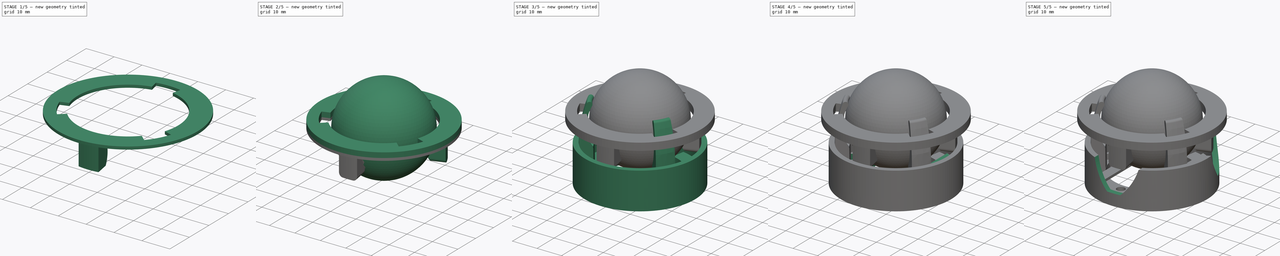
[diagram: build sequence overview — one tinted view per stage of 5, left to right]
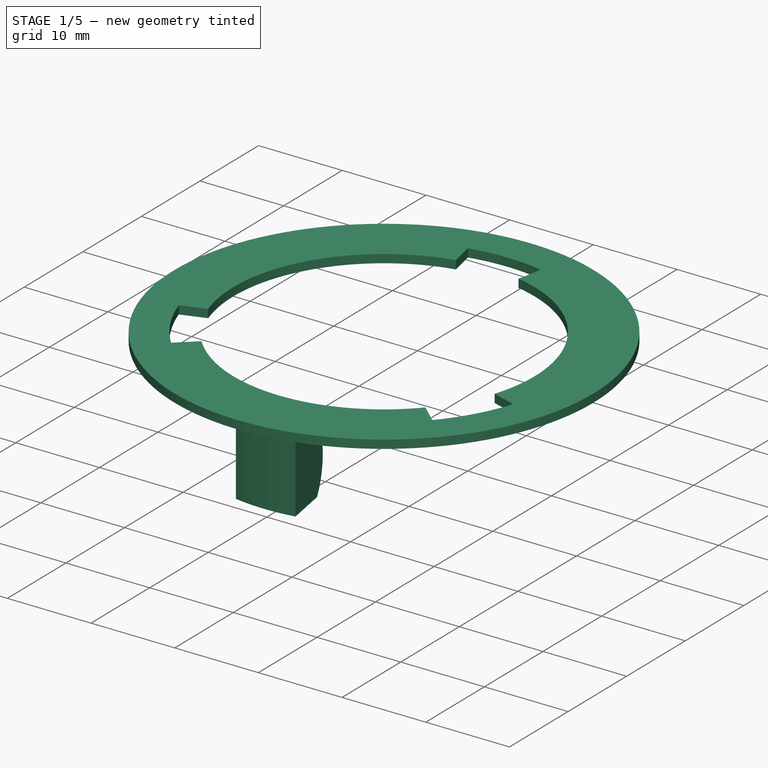
[diagram: stage 1 of 5 — iso view after this stage's code; geometry added in this stage tinted green]
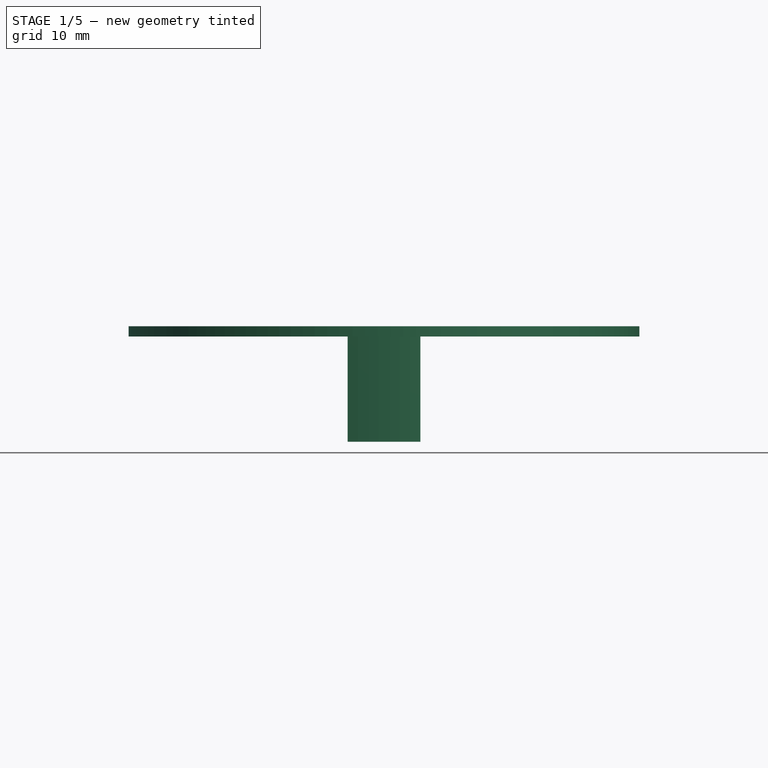
[diagram: stage 1 of 5 — front view after this stage's code; geometry added in this stage tinted green]
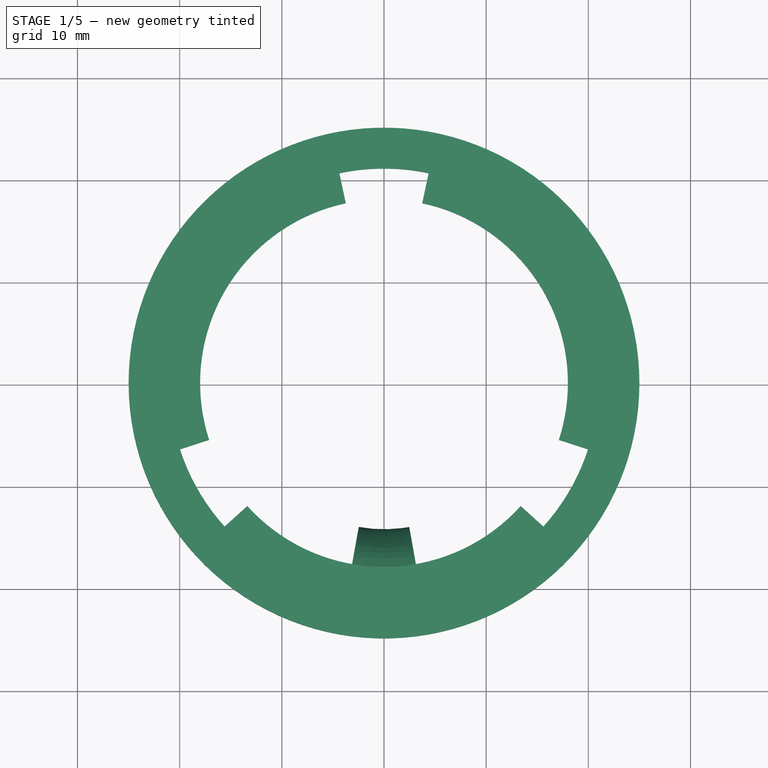
[diagram: stage 1 of 5 — top view after this stage's code; geometry added in this stage tinted green]
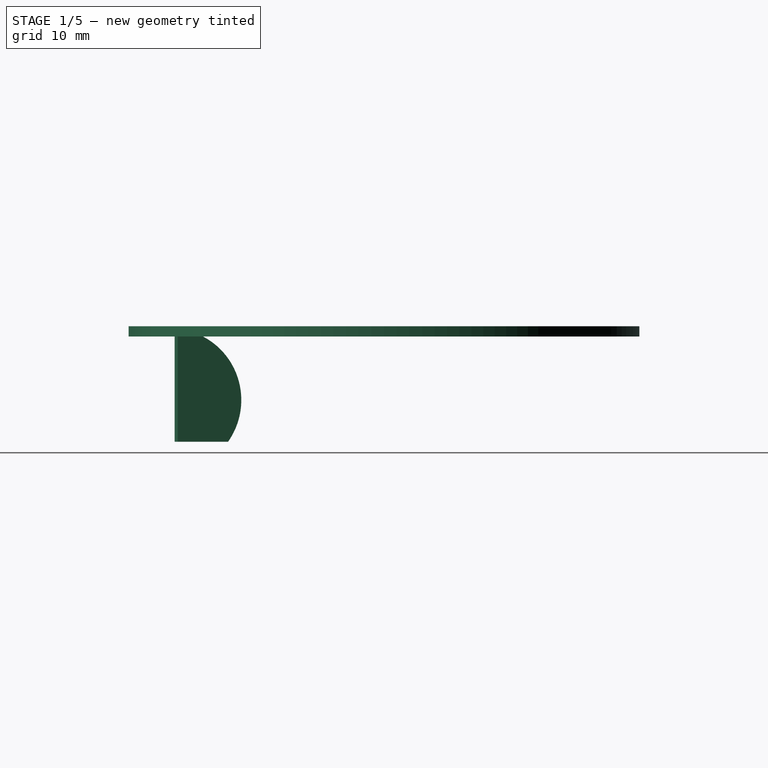
[diagram: stage 1 of 5 — right view after this stage's code; geometry added in this stage tinted green]
FCSTD DOCUMENT  (FreeCAD 0.21R33675 (Git))
Label: trackball_mount
License: All rights reserved
LicenseURL: https://en.wikipedia.org/wiki/All_rights_reserved
objects: Sketcher::SketchObject×16, PartDesign::Pad×7, PartDesign::PolarPattern×6, PartDesign::Pocket×5, PartDesign::Revolution×3, PartDesign::Body×3, PartDesign::Groove×2, App::Part×2, PartDesign::Fillet×1, PartDesign::Chamfer×1
note: 63 computed .brp shape members not serialized (recipe doc carries the construction recipe); baked Part::Feature solids carry a one-line shape summary decoded from their .brp

FEATURE [Sketcher::SketchObject] Sketch012
  FullyConstrained = true
  MapMode = 5
  Support = -> [XY_Plane005]
  sketch-geometry (2):
    g0: Circle CenterX=0 CenterY=0 CenterZ=0 NormalX=0 NormalY=0 NormalZ=1 AngleXU=0 Radius=25
    g1: Circle CenterX=0 CenterY=0 CenterZ=0 NormalX=0 NormalY=0 NormalZ=1 AngleXU=0 Radius=18
  constraints (4):
    c: Coincident(g0,g-1)
    c: Diameter(g0) = 50
    c: Coincident(g1,g0)
    c: Diameter(g1) = 36
FEATURE [PartDesign::Pad] Pad005
  Direction = (0,0,1)
  Length = 1
  Length2 = 10
  Profile = -> Sketch012
  ReferenceAxis = -> Sketch012 [N_Axis]
  Type = 0
FEATURE [Sketcher::SketchObject] Sketch013
  ExternalGeometry = -> [Pad005]
  FullyConstrained = true
  MapMode = 5
  Placement = pos=(0,0,1) rot=(0,0,1;0rad)
  Support = -> [Pad005]
  sketch-geometry (4):
    g0: LineSegment StartX=0 StartY=0 StartZ=0 EndX=-4.36615 EndY=20.5411 EndZ=0
    g1: LineSegment StartX=0 StartY=0 StartZ=0 EndX=4.36615 EndY=20.5411 EndZ=0
    g2: Circle CenterX=0 CenterY=0 CenterZ=0 NormalX=0 NormalY=0 NormalZ=1 AngleXU=0 Radius=21
    g3: ArcOfCircle CenterX=5.6e-15 CenterY=0 CenterZ=0 NormalX=0 NormalY=0 NormalZ=1 AngleXU=0 Radius=21 StartAngle=1.36136 EndAngle=1.78024
  constraints (11):
    c: Coincident(g0,g-1)
    c: Coincident(g1,g0)
    c: Angle(g-2,g0) = 0.20944
    c: Angle(g1,g-2) = 0.20944
    c: Coincident(g2,g0)
    c: Diameter(g2) = 42
    c: PointOnObject(g0,g2)
    c: PointOnObject(g1,g2)
    c: Coincident(g3,g0)
    c: Coincident(g3,g1)
    c: Tangent(g3,g2)
FEATURE [PartDesign::Pocket] Pocket003
  BaseFeature = -> Pad005
  Direction = (0,0,-1)
  Length = 5
  Length2 = 5
  Profile = -> Sketch013
  ReferenceAxis = -> Sketch013 [N_Axis]
  Type = 0
FEATURE [PartDesign::PolarPattern] PolarPattern003
  Angle = 360
  Axis = -> Sketch013 [N_Axis]
  BaseFeature = -> Pocket003
  Occurrences = 3
  Originals = -> [Pocket003]
FEATURE [Sketcher::SketchObject] Sketch015
  ExternalGeometry = -> [PolarPattern003]
  FullyConstrained = true
  MapMode = 5
  Placement = pos=(0,0,0) rot=(0.57735,0.57735,0.57735;2.0944rad)
  Support = -> [YZ_Plane005]
  sketch-geometry (7):
    g0: LineSegment StartX=-20.5 StartY=-10.3 StartZ=0 EndX=-15.5 EndY=-10.3 EndZ=0
    g1: LineSegment StartX=-18 StartY=9e-16 StartZ=0 EndX=-20.5 EndY=9e-16 EndZ=0
    g2: LineSegment StartX=-20.5 StartY=-10.3 StartZ=0 EndX=-20.5 EndY=0 EndZ=0
    g3: Circle CenterX=-18.15 CenterY=-10.3 CenterZ=0 NormalX=0 NormalY=0 NormalZ=1 AngleXU=0 Radius=1.5
    g4: LineSegment StartX=-16.65 StartY=-10.3 StartZ=0 EndX=-16.65 EndY=-2.3 EndZ=0
    g5: Circle CenterX=-16.65 CenterY=-2.3 CenterZ=0 NormalX=0 NormalY=0 NormalZ=1 AngleXU=0 Radius=1
    g6: ArcOfCircle CenterX=-21.1652 CenterY=-6.22165 CenterZ=0 NormalX=0 NormalY=0 NormalZ=1 AngleXU=0 Radius=6.98051 StartAngle=5.65923 EndAngle=7.38337
  constraints (22):
    c: Horizontal(g0)
    c: DistanceX(g0,g-1) = 15.5
    c: DistanceY(g0,g-1) = 10.3
    c: Horizontal(g1)
    c: Coincident(g2,g0)
    c: DistanceX(g0,g0) = 5
    c: DistanceY(g2,g2) = 10.3
    c: Perpendicular(g0,g2)
    c: DistanceX(g1,g1) = 2.5
    c: PointOnObject(g3,g0)
    c: Diameter(g3) = 3
    c: DistanceX(g3,g-1) = 18.15
    c: PointOnObject(g4,g3)
    c: Vertical(g4)
    c: PointOnObject(g4,g0)
    c: DistanceY(g4,g4) = 8
    c: Coincident(g5,g4)
    c: Diameter(g5) = 2
    c: Coincident(g6,g0)
    c: Coincident(g6,g1)
    c: Tangent(g6,g5)
    c: Coincident(g1,g2)
FEATURE [PartDesign::Revolution] Revolution001
  Angle = 20
  Axis = (-2e-16,3e-16,1)
  Base = (0,0,0)
  BaseFeature = -> PolarPattern003
  Midplane = true
  Profile = -> Sketch015
  ReferenceAxis = -> Sketch015 [V_Axis]
FEATURE [PartDesign::Body] Body001  label="Тело001"
  Group = -> [Sketch,Revolution,Sketch001,Groove,Sketch002,Pad,PolarPattern,Sketch003,Pad001,Sketch006,Pocket,Sketch007,Pad002,Sketch008,Pad003,Sketch009,Pocket001,PolarPattern001,Sketch010,Pocket002,PolarPattern002,Sketch016,Groove001,PolarPattern004,Sketch017,Pad006]
  Origin = -> Origin001
  Tip = -> Pad006
FEATURE [App::Part] Part  label="Новый держатель"
  Group = -> [Body001]
  Origin = -> Origin
FEATURE [Sketcher::SketchObject] Sketch018
  FullyConstrained = true
  MapMode = 5
  Placement = pos=(2.3e-15,-2.9e-15,-10.3) rot=(1,0,0;3.14159rad)
  Support = -> [Revolution001]
  sketch-geometry (1):
    g0: Circle CenterX=0 CenterY=18.15 CenterZ=0 NormalX=0 NormalY=0 NormalZ=1 AngleXU=0 Radius=1.4
  constraints (3):
    c: Diameter(g0) = 2.8
    c: PointOnObject(g0,g-2)
    c: DistanceY(g-1,g0) = 18.15
FEATURE [PartDesign::Pocket] Pocket004
  BaseFeature = -> Revolution001
  Direction = (-2e-16,3e-16,1)
  Length = 8
  Length2 = 5
  Profile = -> Sketch018
  ReferenceAxis = -> Sketch018 [N_Axis]
  Type = 0
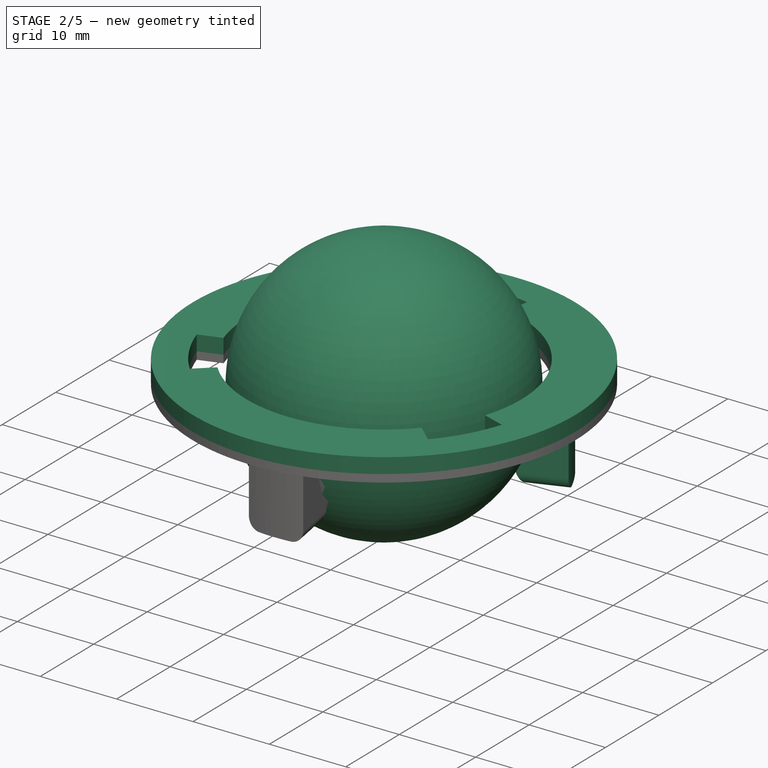
[diagram: stage 2 of 5 — iso view after this stage's code; geometry added in this stage tinted green]
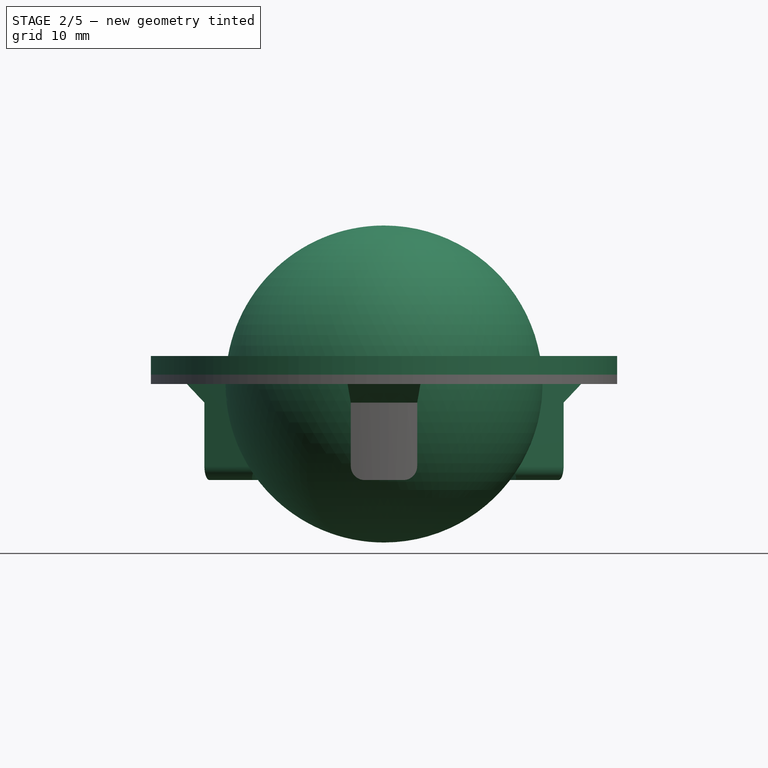
[diagram: stage 2 of 5 — front view after this stage's code; geometry added in this stage tinted green]
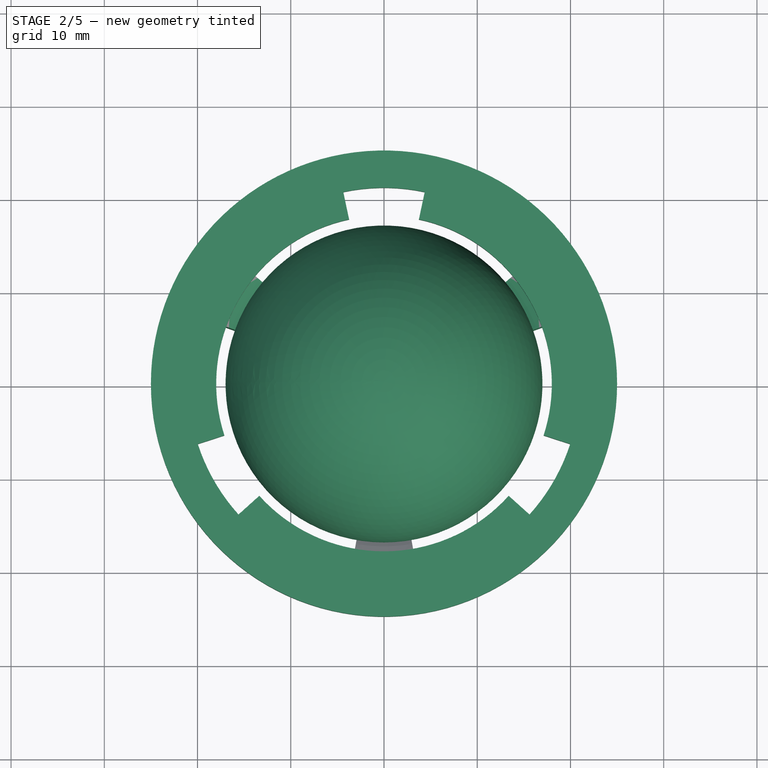
[diagram: stage 2 of 5 — top view after this stage's code; geometry added in this stage tinted green]
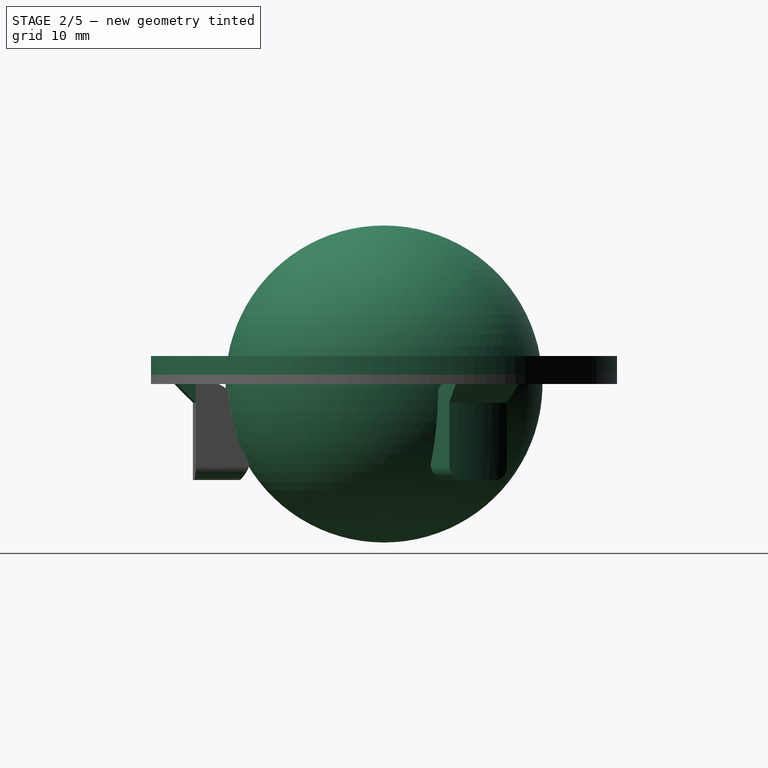
[diagram: stage 2 of 5 — right view after this stage's code; geometry added in this stage tinted green]
FEATURE [PartDesign::PolarPattern] PolarPattern005
  Angle = 360
  Axis = -> Z_Axis005
  BaseFeature = -> Pocket004
  Occurrences = 3
  Originals = -> [Revolution001,Pocket004]
FEATURE [Sketcher::SketchObject] Sketch019
  FullyConstrained = true
  MapMode = 5
  Placement = pos=(0,0,0) rot=(1,0,0;1.5708rad)
  Support = -> [XZ_Plane006]
  sketch-geometry (2):
    g0: ArcOfCircle CenterX=0 CenterY=0 CenterZ=0 NormalX=0 NormalY=0 NormalZ=1 AngleXU=0 Radius=17 StartAngle=1.5708 EndAngle=4.71239
    g1: LineSegment StartX=1e-15 StartY=17 StartZ=0 EndX=1e-15 EndY=-17 EndZ=0
  constraints (6):
    c: Coincident(g0,g-1)
    c: Diameter(g0) = 34
    c: Vertical(g1)
    c: PointOnObject(g1,g-2)
    c: Coincident(g0,g1)
    c: Coincident(g0,g1)
FEATURE [PartDesign::Revolution] Revolution002
  Angle = 360
  Axis = (0,2e-16,1)
  Base = (0,0,0)
  Placement = pos=(0,0,0) rot=(1,0,0;1.5708rad)
  Profile = -> Sketch019
  ReferenceAxis = -> Sketch019 [V_Axis]
FEATURE [PartDesign::Body] Body003  label="Тело003"
  Group = -> [Sketch019,Revolution002]
  Origin = -> Origin006
  Tip = -> Revolution002
FEATURE [PartDesign::Fillet] Fillet
  Base = -> PolarPattern005 [Edge50,Edge45,Edge57,Edge62,Edge74,Edge69]
  BaseFeature = -> PolarPattern005
  Radius = 1.5
  SupportTransform = false
  UseAllEdges = false
FEATURE [PartDesign::Pad] Pad007
  BaseFeature = -> Fillet
  Direction = (0,0,1)
  Length = 2
  Length2 = 10
  Profile = -> Fillet [Face30]
  Type = 0
FEATURE [PartDesign::Chamfer] Chamfer
  Angle = 45
  Base = -> Pad007 [Edge22,Edge14,Edge30]
  BaseFeature = -> Pad007
  ChamferType = 0
  FlipDirection = false
  Size = 2
  Size2 = 1
  SupportTransform = false
  UseAllEdges = false
FEATURE [PartDesign::Body] Body002  label="Тело002"
  Group = -> [Sketch012,Pad005,Sketch013,Pocket003,PolarPattern003,Sketch015,Revolution001,Sketch018,Pocket004,PolarPattern005,Fillet,Pad007,Chamfer]
  Origin = -> Origin005
  Tip = -> Chamfer
FEATURE [App::Part] Part002  label="скоба для держателя"
  Group = -> [Body002]
  Origin = -> Origin004
  Placement = pos=(0,0,-6.5) rot=(0,0,1;0rad)
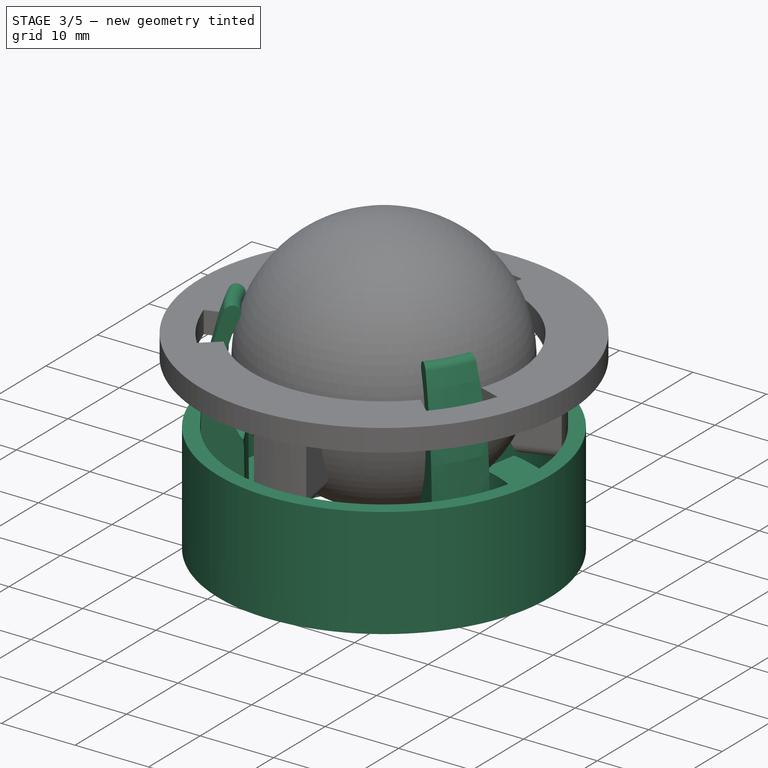
[diagram: stage 3 of 5 — iso view after this stage's code; geometry added in this stage tinted green]
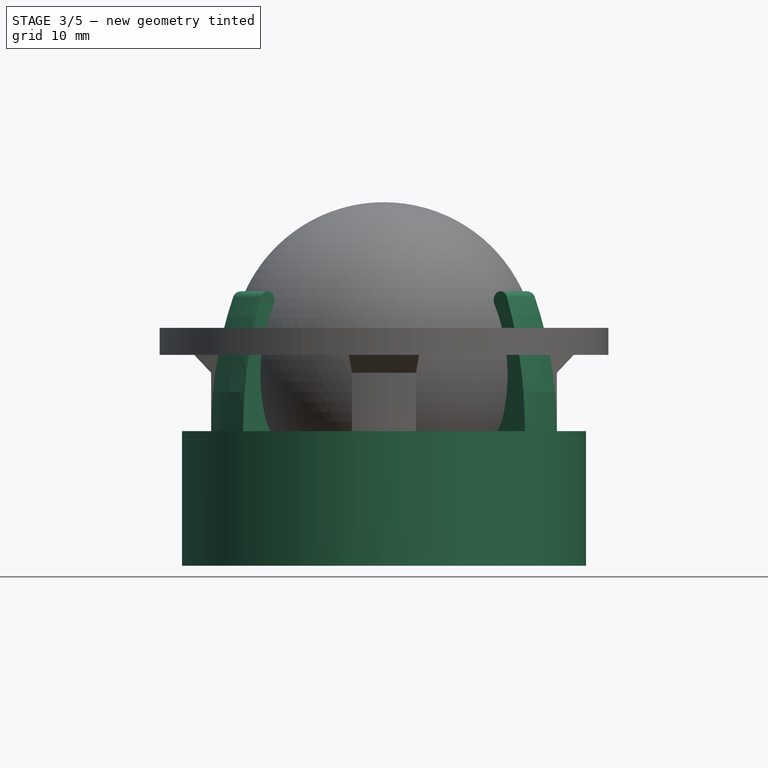
[diagram: stage 3 of 5 — front view after this stage's code; geometry added in this stage tinted green]
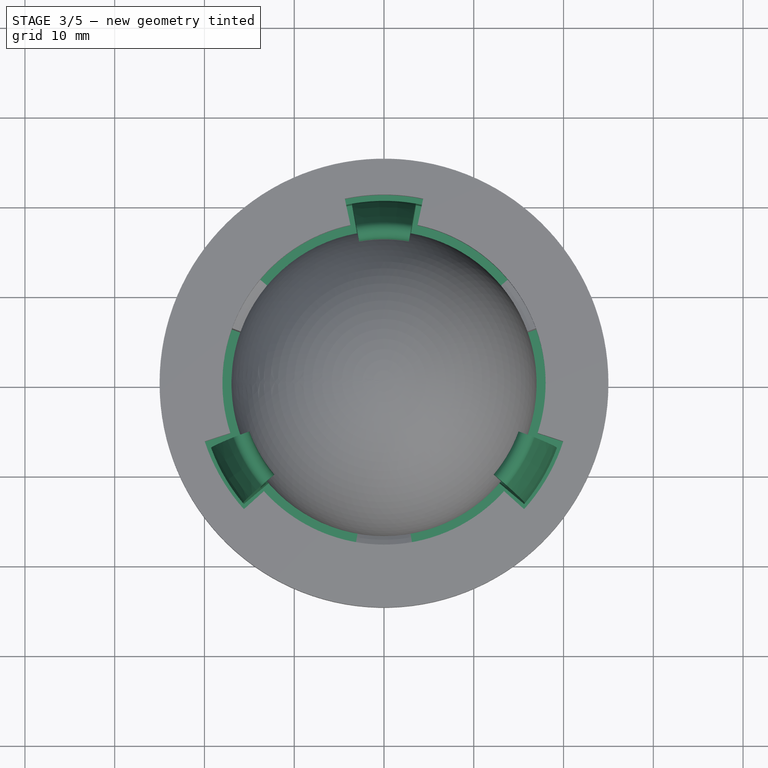
[diagram: stage 3 of 5 — top view after this stage's code; geometry added in this stage tinted green]
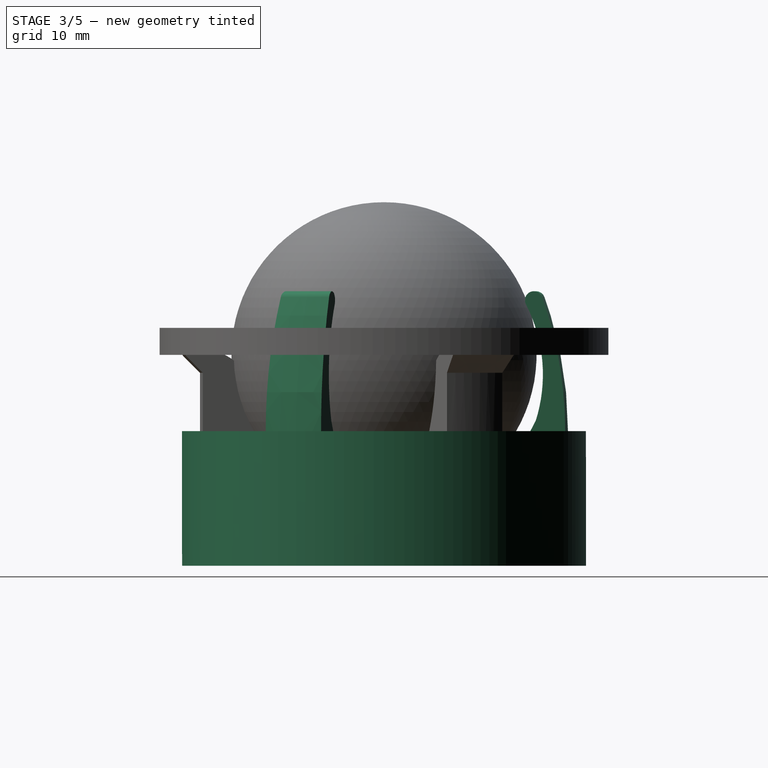
[diagram: stage 3 of 5 — right view after this stage's code; geometry added in this stage tinted green]
FEATURE [Sketcher::SketchObject] Sketch
  FullyConstrained = true
  MapMode = 5
  Placement = pos=(0,0,0) rot=(0.57735,0.57735,0.57735;2.0944rad)
  Support = -> [YZ_Plane001]
  sketch-geometry (18):
    g0: Circle CenterX=0 CenterY=0 CenterZ=0 NormalX=0 NormalY=0 NormalZ=1 AngleXU=0 Radius=17
    g1: LineSegment StartX=-15 StartY=-8 StartZ=0 EndX=15 EndY=-8 EndZ=0
    g2: LineSegment StartX=15 StartY=8 StartZ=0 EndX=15 EndY=-8 EndZ=0
    g3: LineSegment StartX=16 StartY=5.74456 StartZ=0 EndX=16 EndY=-5.74456 EndZ=0
    g4: LineSegment StartX=15 StartY=-8 StartZ=0 EndX=0 EndY=0 EndZ=0
    g5: LineSegment StartX=0 StartY=0 StartZ=0 EndX=16 EndY=5.74456 EndZ=0
    g6: LineSegment StartX=13.8235 StartY=-10.2059 StartZ=0 EndX=16.1765 EndY=-5.79412 EndZ=0
    g7: Circle CenterX=16.4118 CenterY=-8.75294 CenterZ=0 NormalX=0 NormalY=0 NormalZ=1 AngleXU=0 Radius=1.6
    g8: LineSegment StartX=15.1552 StartY=8.0975 StartZ=0 EndX=16.8448 EndY=3.39162 EndZ=0
    g9: ArcOfCircle CenterX=16.9412 CenterY=6.08248 CenterZ=0 NormalX=0 NormalY=0 NormalZ=1 AngleXU=0 Radius=1 StartAngle=1.01853 EndAngle=3.62399
    g10: LineSegment StartX=15.6588 StartY=-10.1647 StartZ=0 EndX=17.1647 EndY=-7.34118 EndZ=0
    g11: ArcOfCircle CenterX=1.15473 CenterY=-2.18434 CenterZ=0 NormalX=0 NormalY=0 NormalZ=1 AngleXU=0 Radius=16.82 StartAngle=5.97158 EndAngle=6.76559
    g12: LineSegment StartX=15.5 StartY=-23.5 StartZ=0 EndX=22.5 EndY=-23.5 EndZ=0
    g13: LineSegment StartX=15.6588 StartY=-10.1647 StartZ=0 EndX=15.5 EndY=-23.5 EndZ=0
    g14: LineSegment StartX=22.5 StartY=-23.5 StartZ=0 EndX=22.5 EndY=-8.5 EndZ=0
    g15: LineSegment StartX=22.5 StartY=-8.5 StartZ=0 EndX=20.5 EndY=-8.5 EndZ=0
    g16: LineSegment StartX=20.5 StartY=-8.5 StartZ=0 EndX=20.5 EndY=1.5 EndZ=0
    g17: ArcOfCircle CenterX=14.1173 CenterY=1.5 CenterZ=0 NormalX=0 NormalY=0 NormalZ=1 AngleXU=0 Radius=6.38269 StartAngle=0 EndAngle=1.01853
  constraints (55):
    c: Coincident(g0,g-1)
    c: Diameter(g0) = 34
    c: Horizontal(g1)
    c: Vertical(g2)
    c: DistanceY(g1,g0) = 8
    c: PointOnObject(g1,g0)
    c: PointOnObject(g1,g0)
    c: Coincident(g2,g1)
    c: PointOnObject(g2,g0)
    c: Vertical(g3)
    c: DistanceX(g2,g3) = 1
    c: PointOnObject(g3,g0)
    c: PointOnObject(g3,g0)
    c: Coincident(g4,g1)
    c: Coincident(g4,g0)
    c: Coincident(g5,g0)
    c: Coincident(g5,g3)
    c: Distance(g6) = 5
    c: Perpendicular(g6,g4)
    c: PointOnObject(g1,g6)
    c: Distance(g1,g6) = 2.5
    c: Diameter(g7) = 3.2
    c: Tangent(g7,g6)
    c: PointOnObject(g1,g7)
    c: Distance(g8) = 5
    c: Perpendicular(g5,g8)
    c: PointOnObject(g3,g8)
    c: Distance(g3,g8) = 2.5
    c: Diameter(g9) = 2
    c: Tangent(g9,g8)
    c: PointOnObject(g3,g9)
    c: PointOnObject(g10,g7)
    c: PointOnObject(g10,g7)
    c: PointOnObject(g7,g10)
    c: Parallel(g10,g6)
    c: Coincident(g11,g10)
    c: Radius(g11) = 16.82
    c: Horizontal(g12)
    c: DistanceY(g12,g0) = 23.5
    c: DistanceX(g12,g12) = 7
    c: DistanceX(g0,g12) = 22.5
    c: Coincident(g13,g12)
    c: Coincident(g13,g10)
    c: Coincident(g14,g12)
    c: Vertical(g14)
    c: DistanceY(g14,g14) = 15
    c: Coincident(g15,g14)
    c: Horizontal(g15)
    c: DistanceX(g0,g15) = 20.5
    c: Tangent(g9,g11) = 1.5708
    c: Coincident(g16,g15)
    c: Vertical(g16)
    c: DistanceY(g16,g16) = 10
    c: Tangent(g17,g16) = -1.5708
    c: Tangent(g9,g17) = -1.5708
FEATURE [PartDesign::Revolution] Revolution
  Angle = 20
  Axis = (1e-16,1e-16,1)
  Base = (0,0,0)
  Midplane = true
  Placement = pos=(0,0,0) rot=(0.57735,0.57735,0.57735;2.0944rad)
  Profile = -> Sketch
  ReferenceAxis = -> Z_Axis001
  Reversed = true
FEATURE [Sketcher::SketchObject] Sketch001
  ExternalGeometry = -> [Revolution]
  FullyConstrained = true
  MapMode = 5
  Placement = pos=(0,0,0) rot=(0.57735,0.57735,0.57735;2.0944rad)
  Support = -> [YZ_Plane001]
  sketch-geometry (10):
    g0: LineSegment StartX=15.6588 StartY=-10.1647 StartZ=0 EndX=17.1647 EndY=-7.34118 EndZ=0
    g1: Circle CenterX=16.4118 CenterY=-8.75294 CenterZ=0 NormalX=0 NormalY=0 NormalZ=1 AngleXU=0 Radius=1.6
    g2: LineSegment StartX=16.4118 StartY=-8.75294 StartZ=0 EndX=18.3529 EndY=-9.78824 EndZ=0
    g3: LineSegment StartX=16.1882 StartY=-10.4471 StartZ=0 EndX=17.6941 EndY=-7.62353 EndZ=0
    g4: GeomPoint X=16.9412 Y=-9.0353 Z=0
    g5: Circle CenterX=16.9412 CenterY=-9.0353 CenterZ=0 NormalX=0 NormalY=0 NormalZ=1 AngleXU=0 Radius=1.6
    g6: LineSegment StartX=17.6941 StartY=-7.62353 StartZ=0 EndX=17.1653 EndY=-6.77481 EndZ=0
    g7: LineSegment StartX=16.4118 StartY=-8.75294 StartZ=0 EndX=15.5294 EndY=-8.28236 EndZ=0
    g8: LineSegment StartX=15.5294 StartY=-8.28236 StartZ=0 EndX=17.1653 EndY=-6.77481 EndZ=0
    g9: ArcOfCircle CenterX=16.9412 CenterY=-9.0353 CenterZ=0 NormalX=0 NormalY=0 NormalZ=1 AngleXU=0 Radius=1.6 StartAngle=5.79323 EndAngle=7.36402
  constraints (27):
    c: Coincident(g0,g-4)
    c: Coincident(g0,g-3)
    c: PointOnObject(g0,g1)
    c: PointOnObject(g0,g1)
    c: Diameter(g1) = 3.2
    c: Coincident(g2,g1)
    c: Perpendicular(g0,g2)
    c: Perpendicular(g2,g3)
    c: PointOnObject(g4,g3)
    c: PointOnObject(g4,g2)
    c: Distance(g4,g1) = 0.6
    c: Coincident(g5,g4)
    c: Diameter(g5) = 3.2
    c: PointOnObject(g3,g5)
    c: PointOnObject(g3,g5)
    c: Coincident(g6,g3)
    c: Distance(g6) = 1
    c: Angle(g6,g3) = 2.0944
    c: PointOnObject(g2,g5)
    c: Parallel(g7,g2)
    c: Coincident(g7,g2)
    c: PointOnObject(g7,g5)
    c: Coincident(g8,g7)
    c: Coincident(g8,g6)
    c: Coincident(g9,g6)
    c: Coincident(g9,g2)
    c: Tangent(g9,g5)
FEATURE [PartDesign::Groove] Groove
  Angle = 360
  Axis = (-3e-16,-0.882353,0.470588)
  Base = (5.6e-15,16.4118,-8.75294)
  BaseFeature = -> Revolution
  Placement = pos=(0,0,0) rot=(0.57735,0.57735,0.57735;2.0944rad)
  Profile = -> Sketch001
  ReferenceAxis = -> Sketch001 [Edge1]
FEATURE [Sketcher::SketchObject] Sketch002
  ExternalGeometry = -> [Groove]
  FullyConstrained = true
  MapMode = 5
  Placement = pos=(5.2e-15,-5.2e-15,-23.5) rot=(0.707107,0.707107,0;3.14159rad)
  Support = -> [Groove]
  sketch-geometry (2):
    g0: Circle CenterX=0 CenterY=0 CenterZ=0 NormalX=0 NormalY=0 NormalZ=1 AngleXU=0 Radius=15.5
    g1: Circle CenterX=0 CenterY=0 CenterZ=0 NormalX=0 NormalY=0 NormalZ=1 AngleXU=0 Radius=22.5
  constraints (6):
    c: PointOnObject(g-3,g0)
    c: PointOnObject(g-3,g0)
    c: Tangent(g0,g-3)
    c: PointOnObject(g-4,g1)
    c: PointOnObject(g-4,g1)
    c: Tangent(g1,g-4)
FEATURE [PartDesign::Pad] Pad
  BaseFeature = -> Groove
  Direction = (6e-16,-3e-16,-1)
  Length = 4.7
  Length2 = 10
  Placement = pos=(0,0,0) rot=(0.57735,0.57735,0.57735;2.0944rad)
  Profile = -> Sketch002
  ReferenceAxis = -> Sketch002 [N_Axis]
  Reversed = true
  Type = 0
FEATURE [PartDesign::PolarPattern] PolarPattern
  Angle = 360
  Axis = -> Z_Axis001
  BaseFeature = -> Pad
  Occurrences = 3
  Originals = -> [Revolution,Groove]
  Placement = pos=(0,0,0) rot=(0.57735,0.57735,0.57735;2.0944rad)
FEATURE [Sketcher::SketchObject] Sketch003
  ExternalGeometry = -> [PolarPattern]
  FullyConstrained = true
  MapMode = 5
  Placement = pos=(1.02e-14,-5.9e-15,-18.8) rot=(0,0,-1;1.5708rad)
  Support = -> [PolarPattern]
  sketch-geometry (2):
    g0: Circle CenterX=0 CenterY=0 CenterZ=0 NormalX=0 NormalY=0 NormalZ=1 AngleXU=0 Radius=22.5
    g1: Circle CenterX=0 CenterY=0 CenterZ=0 NormalX=0 NormalY=0 NormalZ=1 AngleXU=0 Radius=20.5
  constraints (6):
    c: PointOnObject(g-3,g0)
    c: PointOnObject(g-3,g0)
    c: Tangent(g0,g-3)
    c: PointOnObject(g-4,g1)
    c: PointOnObject(g-4,g1)
    c: Tangent(g1,g-4)
FEATURE [PartDesign::Pad] Pad001
  BaseFeature = -> PolarPattern
  Direction = (-9e-16,4e-16,1)
  Length = 10.3
  Length2 = 10
  Placement = pos=(0,0,0) rot=(0.57735,0.57735,0.57735;2.0944rad)
  Profile = -> Sketch003
  ReferenceAxis = -> Sketch003 [N_Axis]
  Type = 0
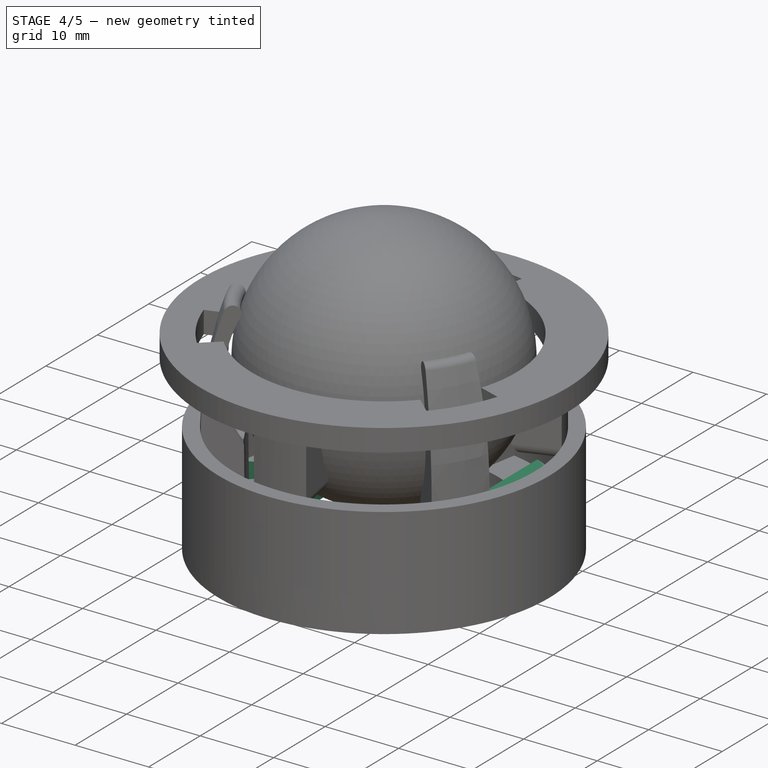
[diagram: stage 4 of 5 — iso view after this stage's code; geometry added in this stage tinted green]
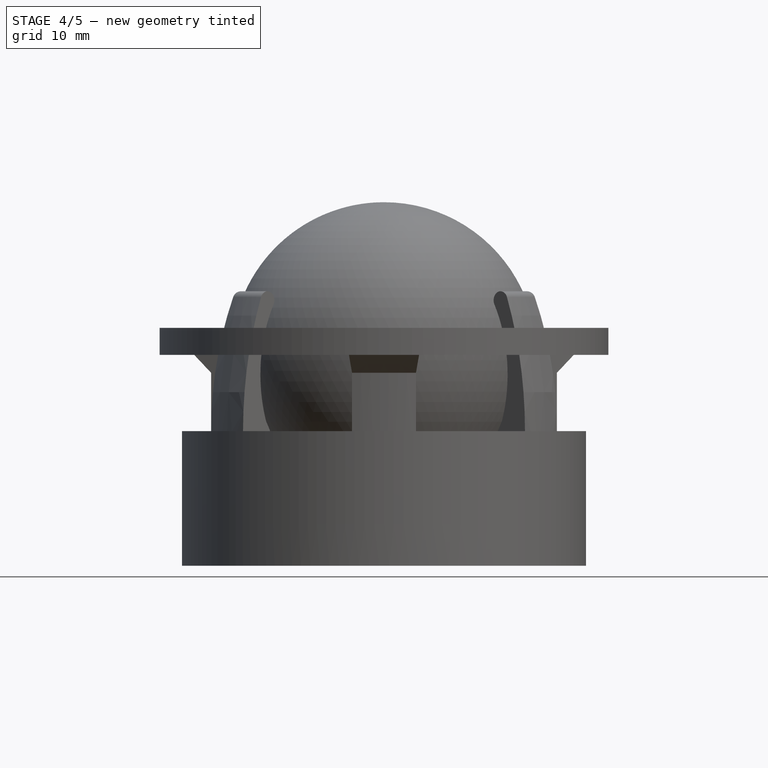
[diagram: stage 4 of 5 — front view after this stage's code; geometry added in this stage tinted green]
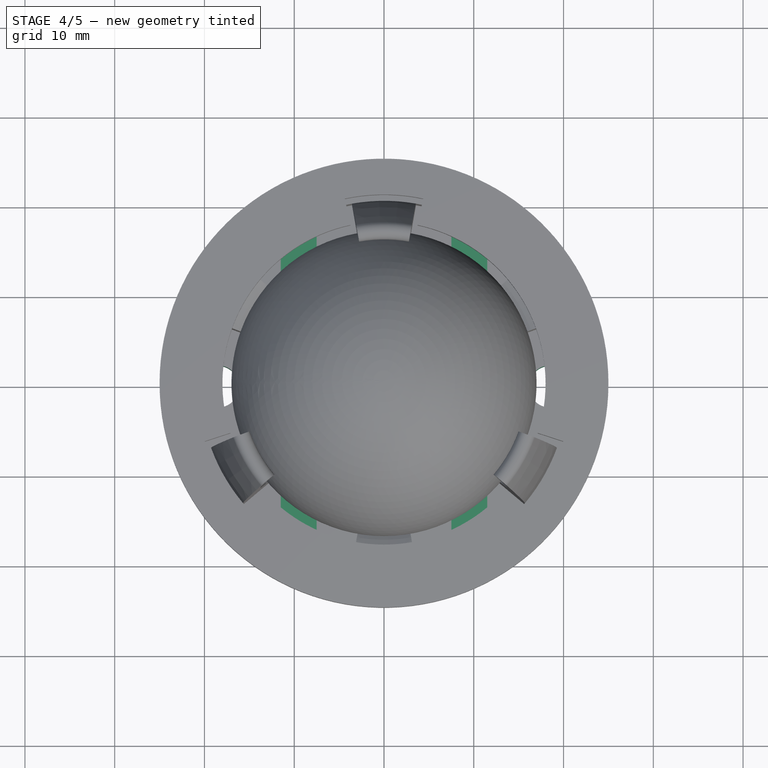
[diagram: stage 4 of 5 — top view after this stage's code; geometry added in this stage tinted green]
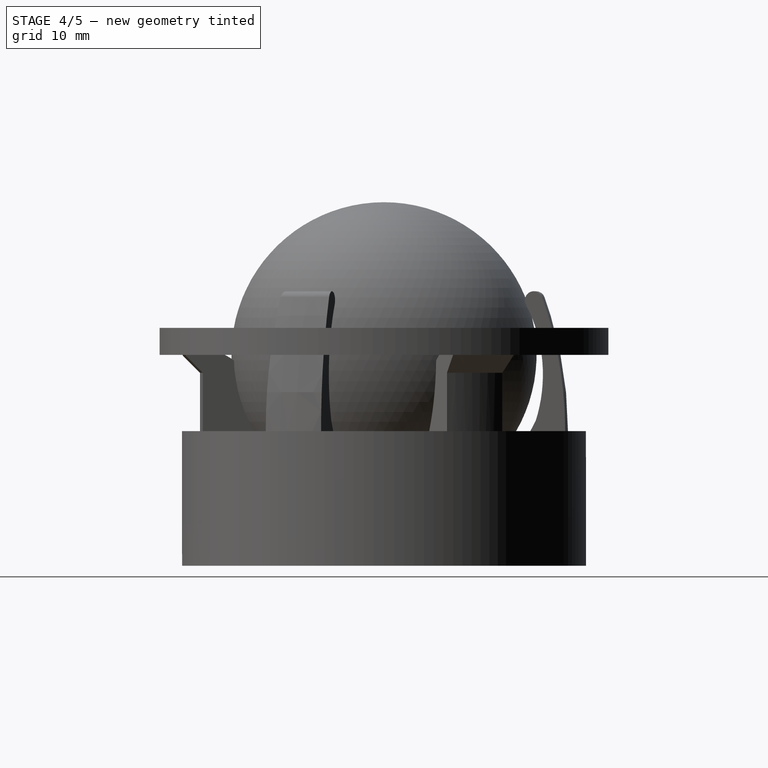
[diagram: stage 4 of 5 — right view after this stage's code; geometry added in this stage tinted green]
FEATURE [Sketcher::SketchObject] Sketch006
  FullyConstrained = true
  MapMode = 5
  Placement = pos=(1.23e-14,-8e-15,-18.8) rot=(0,0,-1;1.5708rad)
  Support = -> [Pad001]
  sketch-geometry (2):
    g0: Circle CenterX=0 CenterY=18.5 CenterZ=0 NormalX=0 NormalY=0 NormalZ=1 AngleXU=0 Radius=2.35
    g1: Circle CenterX=0 CenterY=-18.5 CenterZ=0 NormalX=0 NormalY=0 NormalZ=1 AngleXU=0 Radius=2.35
  constraints (6):
    c: Diameter(g0) = 4.7
    c: Diameter(g1) = 4.7
    c: PointOnObject(g1,g-2)
    c: PointOnObject(g0,g-2)
    c: DistanceY(g-1,g0) = 18.5
    c: DistanceY(g1,g-1) = 18.5
FEATURE [PartDesign::Pocket] Pocket
  BaseFeature = -> Pad001
  Direction = (7e-16,-4e-16,-1)
  Length = 5
  Length2 = 5
  Placement = pos=(0,0,0) rot=(0.57735,0.57735,0.57735;2.0944rad)
  Profile = -> Sketch006
  ReferenceAxis = -> Sketch006 [N_Axis]
  Type = 0
FEATURE [Sketcher::SketchObject] Sketch007
  ExternalGeometry = -> [Pocket]
  FullyConstrained = true
  MapMode = 5
  Placement = pos=(1.8e-14,-1.26e-14,-23.5) rot=(0.707107,0.707107,0;3.14159rad)
  Support = -> [Pocket]
  sketch-geometry (4):
    g0: Circle CenterX=0 CenterY=-18.5 CenterZ=0 NormalX=0 NormalY=0 NormalZ=1 AngleXU=0 Radius=4
    g1: Circle CenterX=8.7e-15 CenterY=18.5 CenterZ=0 NormalX=0 NormalY=0 NormalZ=1 AngleXU=0 Radius=4
    g2: Circle CenterX=8.7e-15 CenterY=18.5 CenterZ=0 NormalX=0 NormalY=0 NormalZ=1 AngleXU=0 Radius=2.5
    g3: Circle CenterX=0 CenterY=-18.5 CenterZ=0 NormalX=0 NormalY=0 NormalZ=1 AngleXU=0 Radius=2.5
  constraints (8):
    c: Coincident(g0,g-3)
    c: Coincident(g1,g-4)
    c: Tangent(g-5,g1)
    c: Tangent(g-6,g0)
    c: Coincident(g2,g1)
    c: Coincident(g3,g0)
    c: Diameter(g3) = 5
    c: Diameter(g2) = 5
FEATURE [PartDesign::Pad] Pad002
  BaseFeature = -> Pocket
  Direction = (7e-16,-5e-16,-1)
  Length = 4.7
  Length2 = 10
  Placement = pos=(0,0,0) rot=(0.57735,0.57735,0.57735;2.0944rad)
  Profile = -> Sketch007
  ReferenceAxis = -> Sketch007 [N_Axis]
  Reversed = true
  Type = 0
FEATURE [Sketcher::SketchObject] Sketch008
  ExternalGeometry = -> [Pad002]
  FullyConstrained = true
  MapMode = 5
  Placement = pos=(1.65e-14,-1.22e-14,-18.8) rot=(0,0,-1;1.5708rad)
  Support = -> [Pad002]
  sketch-geometry (8):
    g0: LineSegment StartX=-19.0788 StartY=7.5 StartZ=0 EndX=19.0788 EndY=7.5 EndZ=0
    g1: LineSegment StartX=-19.0788 StartY=-7.5 StartZ=0 EndX=19.0788 EndY=-7.5 EndZ=0
    g2: LineSegment StartX=-16.9706 StartY=-11.5 StartZ=0 EndX=16.9706 EndY=-11.5 EndZ=0
    g3: LineSegment StartX=-16.9706 StartY=11.5 StartZ=0 EndX=16.9706 EndY=11.5 EndZ=0
    g4: ArcOfCircle CenterX=-4.31e-14 CenterY=3.73e-14 CenterZ=0 NormalX=0 NormalY=0 NormalZ=1 AngleXU=0 Radius=20.5 StartAngle=2.54603 EndAngle=2.76704
    g5: ArcOfCircle CenterX=0 CenterY=6.709e-13 CenterZ=0 NormalX=0 NormalY=0 NormalZ=1 AngleXU=0 Radius=20.5 StartAngle=0.37455 EndAngle=0.595564
    g6: ArcOfCircle CenterX=1.07e-14 CenterY=-3.9e-15 CenterZ=0 NormalX=0 NormalY=0 NormalZ=1 AngleXU=0 Radius=20.5 StartAngle=5.68762 EndAngle=5.90864
    g7: ArcOfCircle CenterX=0 CenterY=-1.10762e-11 CenterZ=0 NormalX=0 NormalY=0 NormalZ=1 AngleXU=0 Radius=20.5 StartAngle=3.51614 EndAngle=3.73716
  constraints (28):
    c: Horizontal(g0)
    c: Horizontal(g1)
    c: DistanceY(g0,g-4) = 11
    c: DistanceY(g-3,g1) = 11
    c: PointOnObject(g0,g-5)
    c: PointOnObject(g0,g-6)
    c: PointOnObject(g1,g-7)
    c: PointOnObject(g1,g-8)
    c: Horizontal(g3)
    c: Horizontal(g2)
    c: DistanceY(g2,g1) = 4
    c: DistanceY(g0,g3) = 4
    c: PointOnObject(g3,g-5)
    c: PointOnObject(g3,g-6)
    c: PointOnObject(g2,g-8)
    c: PointOnObject(g2,g-7)
    c: Coincident(g4,g0)
    c: Coincident(g4,g3)
    c: Tangent(g4,g-5)
    c: Coincident(g5,g3)
    c: Coincident(g5,g0)
    c: Tangent(g5,g-6)
    c: Coincident(g6,g2)
    c: Coincident(g6,g1)
    c: Tangent(g6,g-7)
    c: Coincident(g7,g2)
    c: Coincident(g7,g1)
    c: Tangent(g7,g-8)
FEATURE [PartDesign::Pad] Pad003
  BaseFeature = -> Pad002
  Direction = (-7e-16,6e-16,1)
  Length = 1
  Length2 = 10
  Placement = pos=(0,0,0) rot=(0.57735,0.57735,0.57735;2.0944rad)
  Profile = -> Sketch008
  ReferenceAxis = -> Sketch008 [N_Axis]
  Type = 0
FEATURE [Sketcher::SketchObject] Sketch009
  ExternalGeometry = -> [Pad003]
  FullyConstrained = true
  MapMode = 5
  Placement = pos=(2.32e-14,-1.78e-14,-23.5) rot=(0.707107,0.707107,0;3.14159rad)
  Support = -> [Pad003]
  sketch-geometry (2):
    g0: Circle CenterX=-5e-16 CenterY=3e-16 CenterZ=0 NormalX=0 NormalY=0 NormalZ=1 AngleXU=0 Radius=18.15
    g1: Circle CenterX=-18.15 CenterY=0 CenterZ=0 NormalX=0 NormalY=0 NormalZ=1 AngleXU=0 Radius=1.65
  constraints (7):
    c: Radius(g-3) = 15.5
    c: Radius(g-4) = 22.5
    c: Coincident(g0,g-4)
    c: Diameter(g0) = 36.3
    c: PointOnObject(g1,g0)
    c: PointOnObject(g1,g-1)
    c: Diameter(g1) = 3.3
FEATURE [PartDesign::Pocket] Pocket001
  BaseFeature = -> Pad003
  Direction = (-7e-16,8e-16,1)
  Length = 5
  Length2 = 5
  Placement = pos=(0,0,0) rot=(0.57735,0.57735,0.57735;2.0944rad)
  Profile = -> Sketch009
  ReferenceAxis = -> Sketch009 [N_Axis]
  Type = 0
FEATURE [PartDesign::PolarPattern] PolarPattern001
  Angle = 360
  Axis = -> Sketch009 [N_Axis]
  BaseFeature = -> Pocket001
  Occurrences = 3
  Originals = -> [Pocket001]
  Placement = pos=(0,0,0) rot=(0.57735,0.57735,0.57735;2.0944rad)
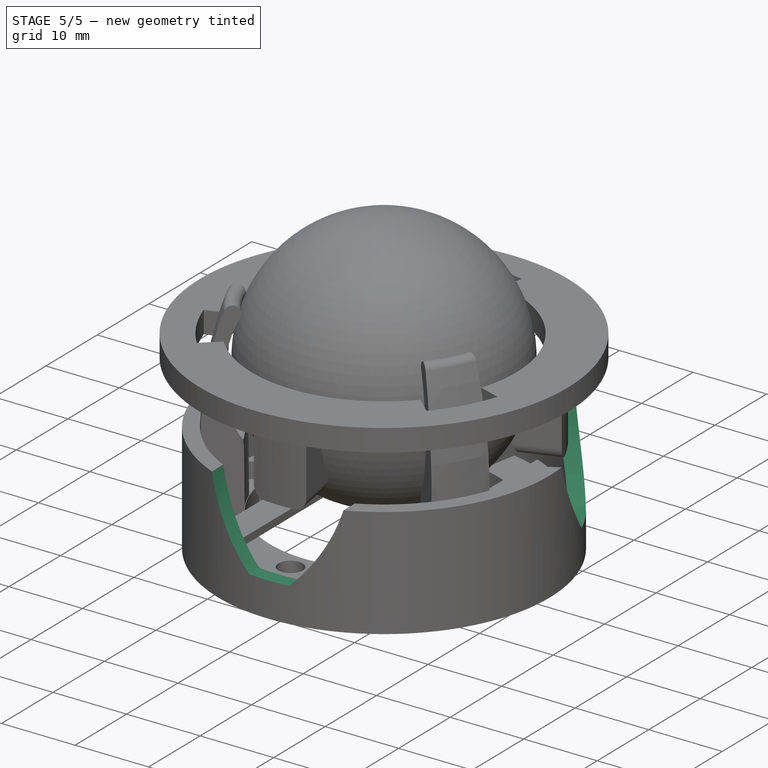
[diagram: stage 5 of 5 — iso view after this stage's code; geometry added in this stage tinted green]
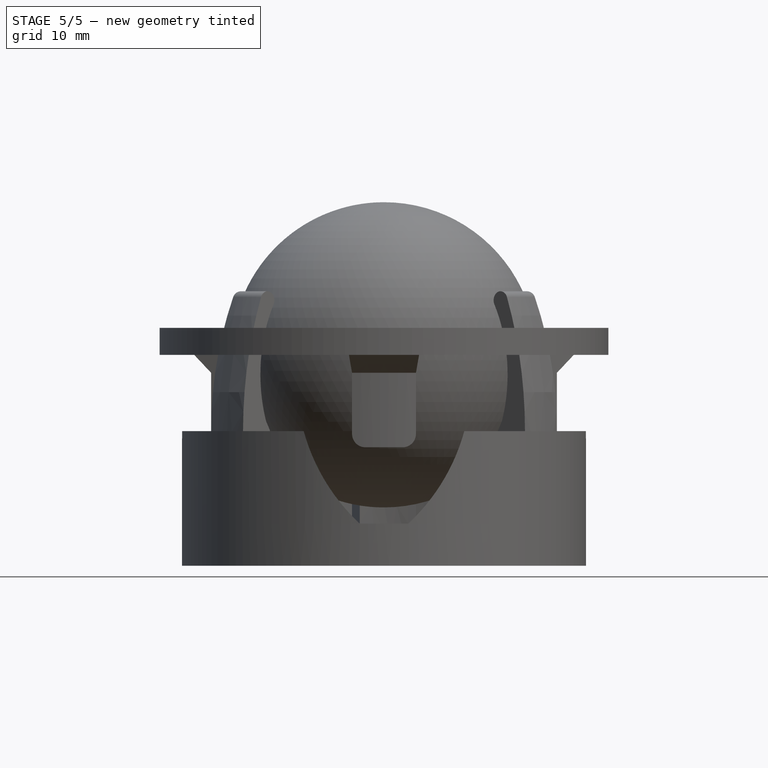
[diagram: stage 5 of 5 — front view after this stage's code; geometry added in this stage tinted green]
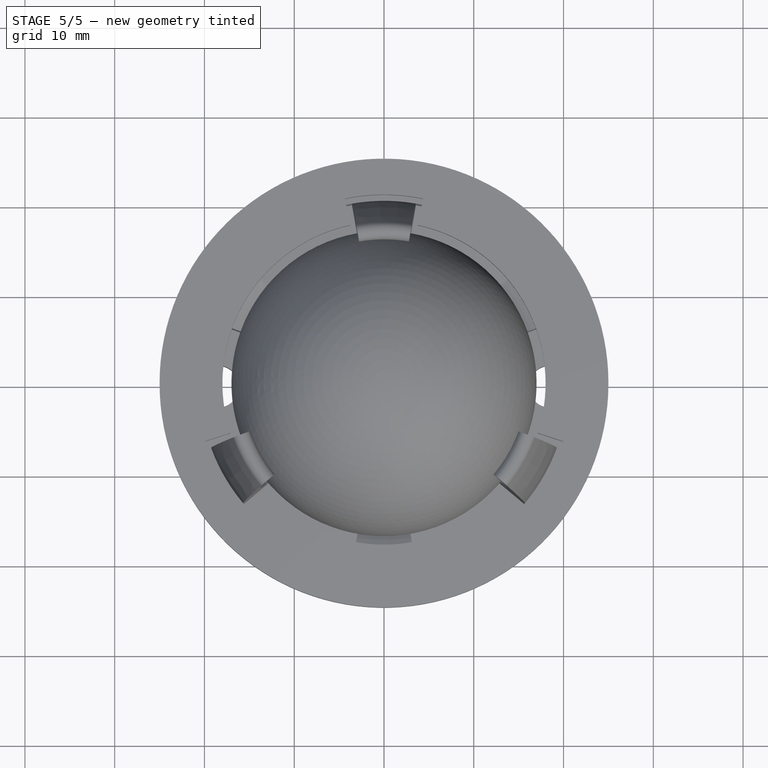
[diagram: stage 5 of 5 — top view after this stage's code; geometry added in this stage tinted green]
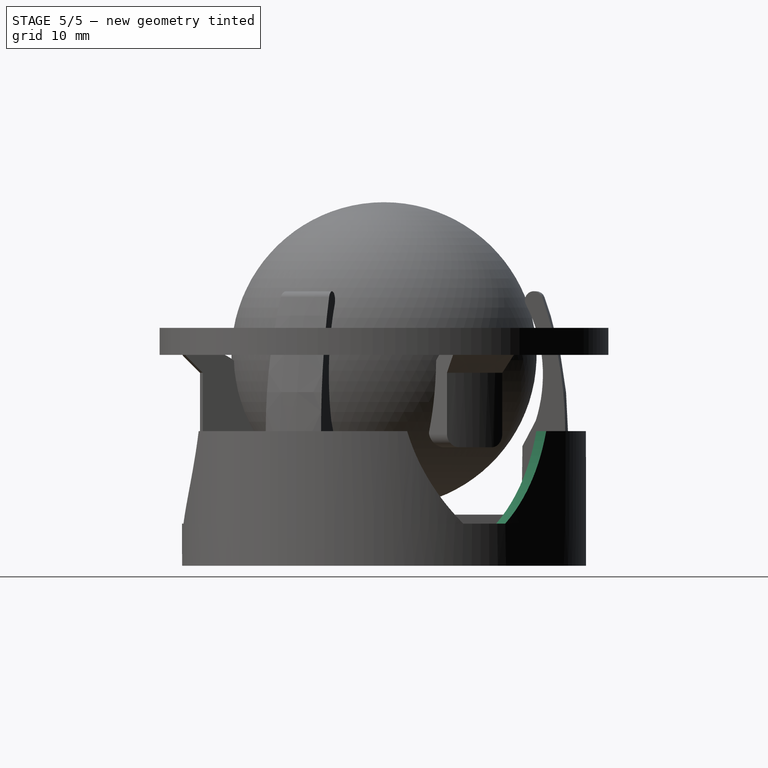
[diagram: stage 5 of 5 — right view after this stage's code; geometry added in this stage tinted green]
FEATURE [Sketcher::SketchObject] Sketch010
  ExternalGeometry = -> [PolarPattern001]
  FullyConstrained = true
  MapMode = 5
  Placement = pos=(0,0,0) rot=(1,0,0;1.5708rad)
  Support = -> [XZ_Plane]
  sketch-geometry (4):
    g0: ArcOfCircle CenterX=12.2756 CenterY=-2.68503 CenterZ=0 NormalX=0 NormalY=0 NormalZ=1 AngleXU=0 Radius=22 StartAngle=3.1634 EndAngle=3.96358
    g1: ArcOfCircle CenterX=-12.2756 CenterY=-2.68503 CenterZ=0 NormalX=0 NormalY=0 NormalZ=1 AngleXU=0 Radius=22 StartAngle=5.4612 EndAngle=6.26138
    g2: LineSegment StartX=-2.70127 StartY=-18.8 StartZ=0 EndX=2.70127 EndY=-18.8 EndZ=0
    g3: LineSegment StartX=-9.71913 StartY=-3.16471 StartZ=0 EndX=9.71913 EndY=-3.16471 EndZ=0
  constraints (13):
    c: Coincident(g0,g-5)
    c: DistanceX(g0,g-5) = 7
    c: DistanceY(g-5,g0) = 7
    c: Radius(g0) = 22
    c: Coincident(g1,g-6)
    c: DistanceX(g-6,g1) = 7
    c: DistanceY(g-6,g1) = 7
    c: Radius(g1) = 22
    c: Coincident(g2,g0)
    c: Coincident(g2,g1)
    c: Coincident(g3,g0)
    c: Horizontal(g3)
    c: PointOnObject(g3,g1)
FEATURE [PartDesign::Pocket] Pocket002
  BaseFeature = -> PolarPattern001
  Direction = (0,1,2e-16)
  Length = 50
  Length2 = 5
  Placement = pos=(0,0,0) rot=(0.57735,0.57735,0.57735;2.0944rad)
  Profile = -> Sketch010
  ReferenceAxis = -> Sketch010 [N_Axis]
  Reversed = true
  Type = 0
FEATURE [PartDesign::PolarPattern] PolarPattern002
  Angle = 360
  Axis = -> Z_Axis001
  BaseFeature = -> Pocket002
  Occurrences = 3
  Originals = -> [Pocket002]
  Placement = pos=(0,0,0) rot=(0.57735,0.57735,0.57735;2.0944rad)
FEATURE [Sketcher::SketchObject] Sketch016
  FullyConstrained = false
  MapMode = 5
  Placement = pos=(0,0,0) rot=(0.57735,0.57735,0.57735;2.0944rad)
  Support = -> [YZ_Plane005]
  sketch-geometry (3):
    g0: LineSegment StartX=-19.8 StartY=-23.5 StartZ=0 EndX=-21.8 EndY=-23.5 EndZ=0
    g1: LineSegment StartX=-19.8 StartY=-23.5 StartZ=0 EndX=-19.8 EndY=-21.5 EndZ=0
    g2: LineSegment StartX=-21.8 StartY=-23.5 StartZ=0 EndX=-19.8 EndY=-21.5 EndZ=0
  constraints (7):
    c: Coincident(g1,g0)
    c: Horizontal(g0)
    c: Vertical(g1)
    c: DistanceX(g0,g0) = 2
    c: DistanceY(g1,g1) = 2
    c: Coincident(g2,g0)
    c: Coincident(g2,g1)
FEATURE [PartDesign::Groove] Groove001
  Angle = 360
  Axis = (1e-15,-8e-16,-1)
  Base = (5.3e-15,-18.15,-23.5)
  BaseFeature = -> PolarPattern002
  Placement = pos=(0,0,0) rot=(0.57735,0.57735,0.57735;2.0944rad)
  Profile = -> Sketch016
  Reversed = true
FEATURE [PartDesign::PolarPattern] PolarPattern004
  Angle = 360
  Axis = -> Z_Axis001
  BaseFeature = -> Groove001
  Occurrences = 3
  Originals = -> [Groove001]
  Placement = pos=(0,0,0) rot=(0.57735,0.57735,0.57735;2.0944rad)
FEATURE [Sketcher::SketchObject] Sketch017
  ExternalGeometry = -> [PolarPattern004]
  FullyConstrained = true
  MapMode = 5
  Placement = pos=(2.48e-14,-2.05e-14,-18.8) rot=(0,0,-1;1.5708rad)
  Support = -> [PolarPattern004]
  sketch-geometry (8):
    g0: LineSegment StartX=-10.9234 StartY=11.5 StartZ=0 EndX=-0.0462973 EndY=11.5 EndZ=0
    g1: LineSegment StartX=-0.0462973 StartY=11.5 StartZ=0 EndX=-0.0462973 EndY=7.5 EndZ=0
    g2: LineSegment StartX=-0.0462973 StartY=7.5 StartZ=0 EndX=-10.9234 EndY=7.5 EndZ=0
    g3: LineSegment StartX=-10.9234 StartY=7.5 StartZ=0 EndX=-10.9234 EndY=11.5 EndZ=0
    g4: LineSegment StartX=-10.9234 StartY=-11.5 StartZ=0 EndX=-0.0462973 EndY=-11.5 EndZ=0
    g5: LineSegment StartX=-0.0462973 StartY=-11.5 StartZ=0 EndX=-0.0462973 EndY=-7.5 EndZ=0
    g6: LineSegment StartX=-0.0462973 StartY=-7.5 StartZ=0 EndX=-10.9234 EndY=-7.5 EndZ=0
    g7: LineSegment StartX=-10.9234 StartY=-7.5 StartZ=0 EndX=-10.9234 EndY=-11.5 EndZ=0
  constraints (20):
    c: Coincident(g0,g1)
    c: Coincident(g1,g2)
    c: Coincident(g2,g3)
    c: Coincident(g3,g0)
    c: Horizontal(g0)
    c: Horizontal(g2)
    c: Vertical(g1)
    c: Vertical(g3)
    c: Coincident(g0,g-5)
    c: Coincident(g1,g-6)
    c: Coincident(g4,g5)
    c: Coincident(g5,g6)
    c: Coincident(g6,g7)
    c: Coincident(g7,g4)
    c: Horizontal(g4)
    c: Horizontal(g6)
    c: Vertical(g5)
    c: Vertical(g7)
    c: Coincident(g4,g-3)
    c: Coincident(g5,g-4)
FEATURE [PartDesign::Pad] Pad006
  BaseFeature = -> PolarPattern004
  Direction = (-7e-16,1.1e-15,1)
  Length = 1
  Length2 = 10
  Placement = pos=(0,0,0) rot=(0.57735,0.57735,0.57735;2.0944rad)
  Profile = -> Sketch017
  ReferenceAxis = -> Sketch017 [N_Axis]
  Type = 0
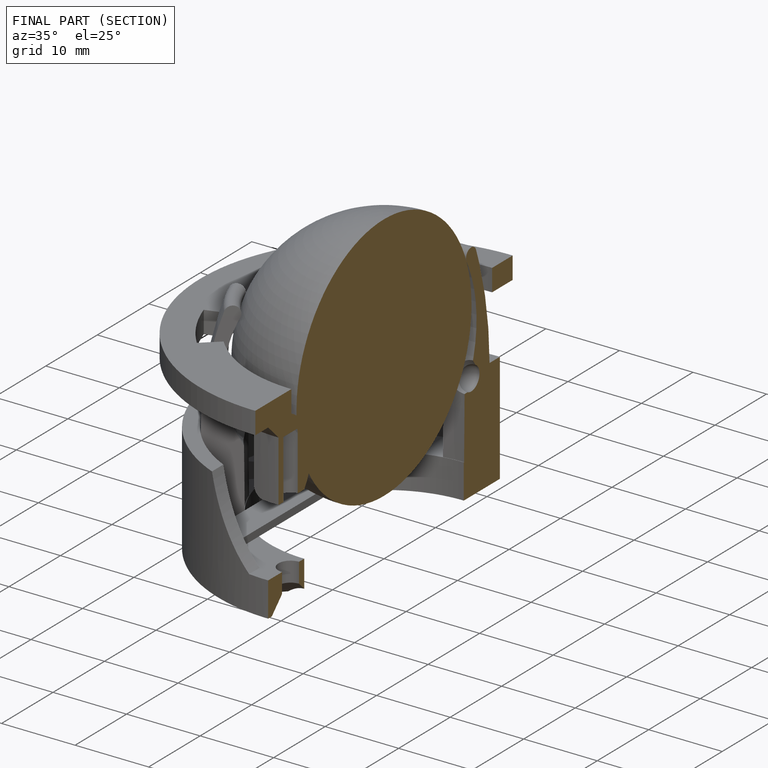
[diagram: finished part — half-section view (interior)]
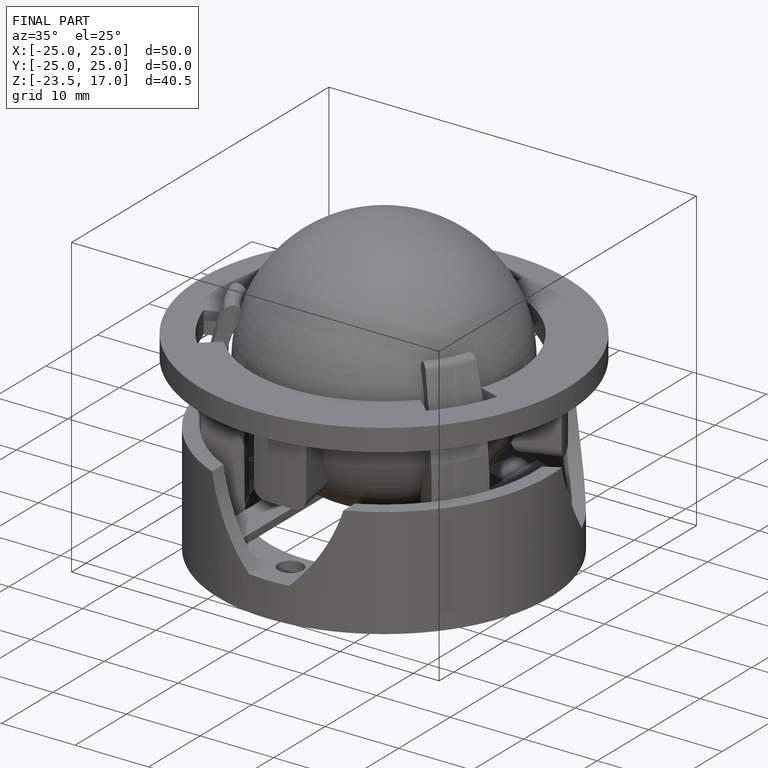
[diagram: finished part — iso view with bounding-box wireframe]
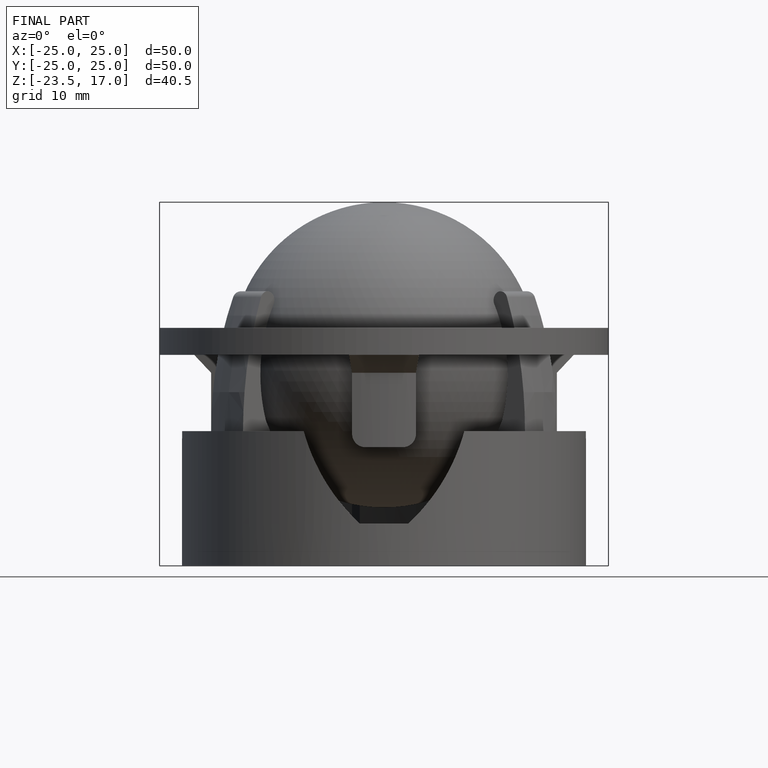
[diagram: finished part — front view with bounding-box wireframe]
